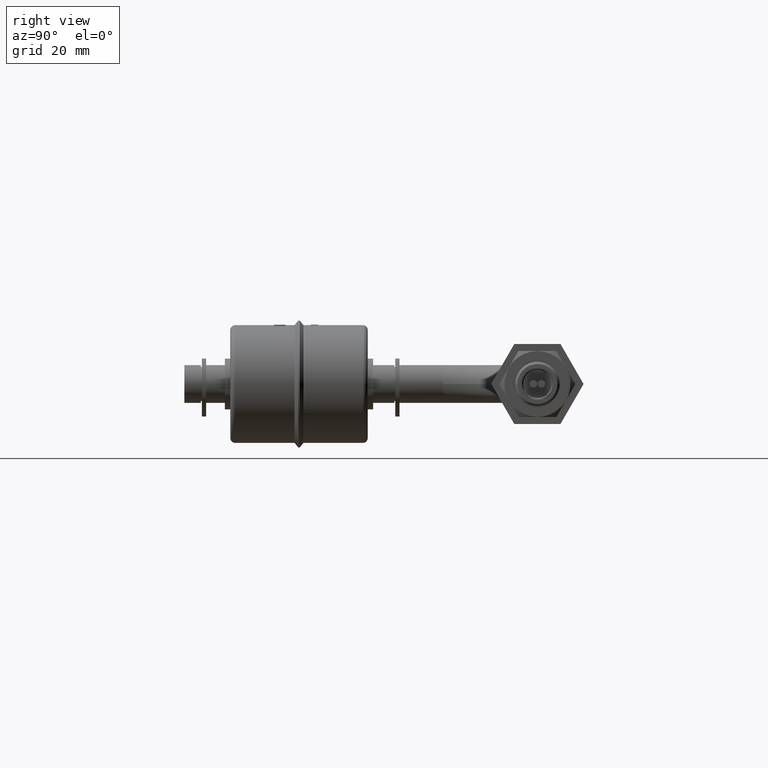
[diagram: clean part render]
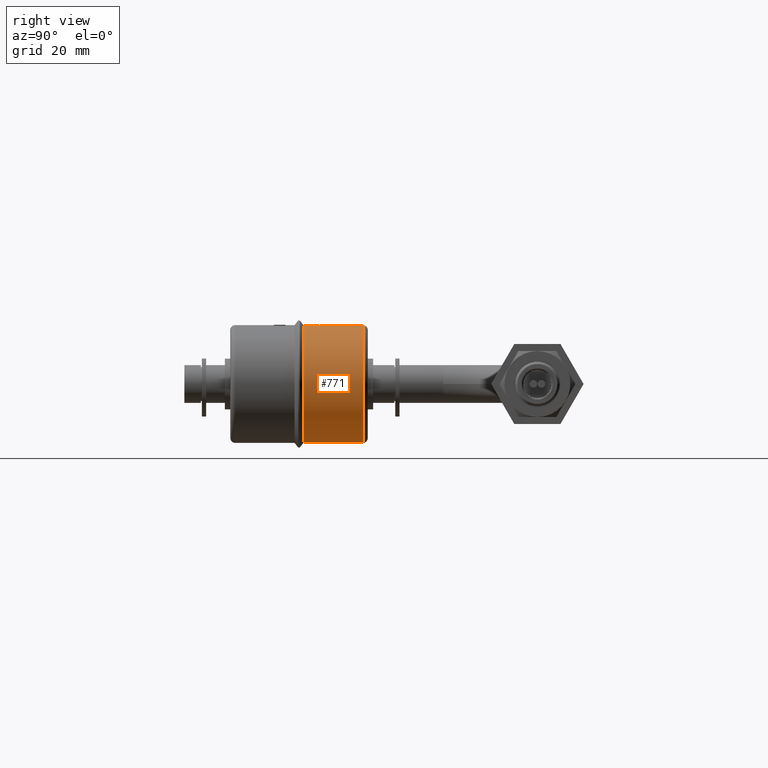
[diagram: same view with one face highlighted and labeled with its STEP entity id]
A machine part, right view. The second image highlights one B-rep face of the part: STEP entity #771.
In plain terms, the highlighted cylindrical surface (partial cylindrical patch) has radius 12.5 mm, axis along (-0, -1, -0).
Its self-contained STEP definition (entity closure, byte-faithful):
#99 = CARTESIAN_POINT ( 'NONE',  ( 0.7433915989660145884, 28.19691010064516945, 12.47795346243864323 ) ) ;
#122 = CARTESIAN_POINT ( 'NONE',  ( 0.8091316928676174358, 26.77177975796869802, 12.47431058760020228 ) ) ;
#150 = VERTEX_POINT ( 'NONE', #4309 ) ;
#162 = CARTESIAN_POINT ( 'NONE',  ( 2.196992852310222677, 26.37401893132059172, 12.30585173349296468 ) ) ;
#176 = DIRECTION ( 'NONE',  ( -0.0000000000000000000, -1.000000000000000000, -0.0000000000000000000 ) ) ;
#195 = CARTESIAN_POINT ( 'NONE',  ( 0.1171375204749793009, 28.78038633361308740, 12.49945624666883859 ) ) ;
#200 = VERTEX_POINT ( 'NONE', #4786 ) ;
#225 = CARTESIAN_POINT ( 'NONE',  ( 0.6279278836946089459, 27.21130240048875137, 12.48422502174397941 ) ) ;
#274 = DIRECTION ( 'NONE',  ( -0.0000000000000000000, -1.000000000000000000, -0.0000000000000000000 ) ) ;
#317 = CARTESIAN_POINT ( 'NONE',  ( 1.714314920617636240, 26.44702855182415391, 12.38209996349304376 ) ) ;
#400 = ORIENTED_EDGE ( 'NONE', *, *, #6238, .T. ) ;
#417 = CARTESIAN_POINT ( 'NONE',  ( 0.0000000000000000000, 37.94999999999999574, 0.0000000000000000000 ) ) ;
#490 = CARTESIAN_POINT ( 'NONE',  ( 0.7614700107552599961, 27.85596884027372511, 12.47679168110111725 ) ) ;
#526 = DIRECTION ( 'NONE',  ( -0.0000000000000000000, -1.000000000000000000, -0.0000000000000000000 ) ) ;
#527 = CARTESIAN_POINT ( 'NONE',  ( 2.404946577101083616, 26.44596864932883662, 12.26646778666497539 ) ) ;
#530 = DIRECTION ( 'NONE',  ( 0.0000000000000000000, 0.0000000000000000000, -1.000000000000000000 ) ) ;
#538 = VERTEX_POINT ( 'NONE', #8331 ) ;
#540 = CARTESIAN_POINT ( 'NONE',  ( 2.465159504026103399, 28.61474050342846098, 12.25450890977316121 ) ) ;
#561 = VERTEX_POINT ( 'NONE', #4224 ) ;
#668 = CARTESIAN_POINT ( 'NONE',  ( 0.1263467554349991251, 28.22884943677128788, 12.49936144358547097 ) ) ;
#670 = CARTESIAN_POINT ( 'NONE',  ( 0.9096575538875141254, 26.86266549515582369, 12.46690581167587553 ) ) ;
#693 = CARTESIAN_POINT ( 'NONE',  ( 0.06168063965292488321, 28.78067944116160959, 12.49984781902131914 ) ) ;
#771 = ADVANCED_FACE ( 'NONE', ( #6615, #5009 ), #1646, .T. ) ;
#890 = B_SPLINE_CURVE_WITH_KNOTS ( 'NONE', 3,
 ( #3624, #1120, #2069, #8468, #9948, #4413, #2713, #5158, #8363, #4522, #7638, #6086, #490, #10155, #3716, #4365 ),
 .UNSPECIFIED., .F., .F.,
 ( 4, 2, 2, 2, 2, 2, 2, 4 ),
 ( 0.0000000000000000000, 0.0002276516652824956441, 0.0004553033305649912882, 0.0006829549958474869864, 0.0009106066611299825763, 0.001365909991694981562, 0.001593561656977481381, 0.001821213322259980982 ),
 .UNSPECIFIED. ) ;
#901 = CARTESIAN_POINT ( 'NONE',  ( 1.476527239314954887, 26.37629366395837849, 12.41272832676052040 ) ) ;
#945 = CARTESIAN_POINT ( 'NONE',  ( 0.0000000000000000000, 25.29828951221004374, -12.50000000000000178 ) ) ;
#973 = VERTEX_POINT ( 'NONE', #9324 ) ;
#1050 = CARTESIAN_POINT ( 'NONE',  ( 0.02431159623656548377, 28.59979161927607905, 12.49997656208424779 ) ) ;
#1109 = CARTESIAN_POINT ( 'NONE',  ( 0.1263467554349991251, 28.22884943677128788, 12.49936144358547097 ) ) ;
#1120 = CARTESIAN_POINT ( 'NONE',  ( 1.787505395480436965, 28.71345278840971105, 12.37177076853418711 ) ) ;
#1161 = CARTESIAN_POINT ( 'NONE',  ( 0.005888894683393432541, 26.37964636528310791, 12.49999861283670377 ) ) ;
#1169 = CARTESIAN_POINT ( 'NONE',  ( 1.965885327346167610, 28.71230090350568176, 12.34487915838186822 ) ) ;
#1305 = CARTESIAN_POINT ( 'NONE',  ( 2.220528122474717314, 26.49137504162328938, 12.30167615683985716 ) ) ;
#1339 = CARTESIAN_POINT ( 'NONE',  ( 1.897273866742778647, 28.81498667855867168, 12.35517510497422933 ) ) ;
#1390 = ORIENTED_EDGE ( 'NONE', *, *, #5008, .T. ) ;
#1400 = ORIENTED_EDGE ( 'NONE', *, *, #5000, .T. ) ;
#1469 = B_SPLINE_CURVE_WITH_KNOTS ( 'NONE', 3,
 ( #2388, #3196, #8669, #7960, #2332, #3780, #693, #9408, #6411, #2171 ),
 .UNSPECIFIED., .F., .F.,
 ( 4, 3, 3, 4 ),
 ( 0.0000000000000000000, 1.643153585383542740E-05, 3.286312851827751592E-05, 6.572641336118978730E-05 ),
 .UNSPECIFIED. ) ;
#1490 = CIRCLE ( 'NONE', #3195, 12.50000000000000178 ) ;
#1547 = VERTEX_POINT ( 'NONE', #6607 ) ;
#1558 = VERTEX_POINT ( 'NONE', #6728 ) ;
#1586 = LINE ( 'NONE', #7199, #4791 ) ;
#1608 = EDGE_CURVE ( 'NONE', #1971, #4918, #1683, .T. ) ;
#1646 = CYLINDRICAL_SURFACE ( 'NONE', #4771, 12.50000000000000000 ) ;
#1670 = ORIENTED_EDGE ( 'NONE', *, *, #9792, .T. ) ;
#1677 = EDGE_CURVE ( 'NONE', #973, #7993, #5899, .T. ) ;
#1683 =( BOUNDED_CURVE ( )  B_SPLINE_CURVE ( 3, ( #5094, #1050, #4296, #4347 ),
 .UNSPECIFIED., .F., .T. ) 
 B_SPLINE_CURVE_WITH_KNOTS ( ( 4, 4 ),
 ( 1.572560477514344024, 1.573102812035284126 ),
 .UNSPECIFIED. ) 
 CURVE ( )  GEOMETRIC_REPRESENTATION_ITEM ( )  RATIONAL_B_SPLINE_CURVE ( ( 1.000000000000000000, 0.9999999754894389747, 0.9999999754894389747, 1.000000000000000000 ) ) 
 REPRESENTATION_ITEM ( '' )  );
#1724 = CARTESIAN_POINT ( 'NONE',  ( 1.070248863757675029, 28.59741852442783383, 12.45470842200331418 ) ) ;
#1732 = EDGE_CURVE ( 'NONE', #6266, #1971, #2680, .T. ) ;
#1792 = EDGE_CURVE ( 'NONE', #10067, #561, #1490, .T. ) ;
#1803 = DIRECTION ( 'NONE',  ( 0.0000000000000000000, 0.0000000000000000000, -1.000000000000000000 ) ) ;
#1820 = CARTESIAN_POINT ( 'NONE',  ( 0.1623284900287088051, 28.78161231603696990, 12.49894593401079490 ) ) ;
#1884 = CARTESIAN_POINT ( 'NONE',  ( 1.889428790291698856, 26.34655047310571163, 12.35681743796982524 ) ) ;
#1911 = CARTESIAN_POINT ( 'NONE',  ( 0.001962983839626683460, 26.37970556745363382, 12.50000000000000000 ) ) ;
#1971 = VERTEX_POINT ( 'NONE', #4121 ) ;
#2025 = CARTESIAN_POINT ( 'NONE',  ( 2.372145977824497542, 28.76885238052527427, 12.27294605415855067 ) ) ;
#2069 = CARTESIAN_POINT ( 'NONE',  ( 1.712047821779614898, 28.70899408905421168, 12.38242691328907163 ) ) ;
#2171 = CARTESIAN_POINT ( 'NONE',  ( 0.09453681615650272319, 28.78004789279376041, 12.49964250650357656 ) ) ;
#2208 = CARTESIAN_POINT ( 'NONE',  ( 0.0000000000000000000, 25.29828951221004374, 0.0000000000000000000 ) ) ;
#2259 = CARTESIAN_POINT ( 'NONE',  ( 0.8129468124662632134, 27.05663221181540123, 12.47355508484551301 ) ) ;
#2292 = VECTOR ( 'NONE', #6781, 1000.000000000000000 ) ;
#2296 = ORIENTED_EDGE ( 'NONE', *, *, #1677, .T. ) ;
#2332 = CARTESIAN_POINT ( 'NONE',  ( 0.05073002161571937146, 28.78096269302822563, 12.49989825716452430 ) ) ;
#2388 = CARTESIAN_POINT ( 'NONE',  ( 0.02883103994190307912, 28.78161231603696990, 12.49996675080121555 ) ) ;
#2472 = CARTESIAN_POINT ( 'NONE',  ( 0.7309487310114570757, 27.47994253941575593, 12.47861032069516618 ) ) ;
#2487 = ORIENTED_EDGE ( 'NONE', *, *, #7425, .T. ) ;
#2501 = CARTESIAN_POINT ( 'NONE',  ( 0.1058370963080327298, 28.78021617590755099, 12.49955704065872197 ) ) ;
#2512 = CARTESIAN_POINT ( 'NONE',  ( 1.554785201014117213, 28.78383295424587374, 12.40322695499893157 ) ) ;
#2522 = CARTESIAN_POINT ( 'NONE',  ( 1.102236267688492477, 26.64618296145196297, 12.45170655787460667 ) ) ;
#2574 = CARTESIAN_POINT ( 'NONE',  ( 1.786199816475241064, 26.34528385195276456, 12.37172139258009018 ) ) ;
#2589 = CARTESIAN_POINT ( 'NONE',  ( 1.707775745244631160, 26.34710567461690900, 12.38304407413703245 ) ) ;
#2625 = CARTESIAN_POINT ( 'NONE',  ( 2.297868100158664717, 26.39269503748335310, 12.28740401418773054 ) ) ;
#2680 =( BOUNDED_CURVE ( )  B_SPLINE_CURVE ( 3, ( #9346, #3768, #5560, #4627 ),
 .UNSPECIFIED., .F., .T. ) 
 B_SPLINE_CURVE_WITH_KNOTS ( ( 4, 4 ),
 ( 1.570796326794896780, 1.572560477514344024 ),
 .UNSPECIFIED. ) 
 CURVE ( )  GEOMETRIC_REPRESENTATION_ITEM ( )  RATIONAL_B_SPLINE_CURVE ( ( 1.000000000000000000, 0.9999997406477032502, 0.9999997406477032502, 1.000000000000000000 ) ) 
 REPRESENTATION_ITEM ( '' )  );
#2706 = EDGE_CURVE ( 'NONE', #6325, #6893, #7525, .T. ) ;
#2713 = CARTESIAN_POINT ( 'NONE',  ( 1.277125340193323799, 28.58222330121400390, 12.43475154285574291 ) ) ;
#2744 = CARTESIAN_POINT ( 'NONE',  ( 2.058700693519853520, 26.46485132710756005, 12.32942605343505349 ) ) ;
#2798 = B_SPLINE_CURVE_WITH_KNOTS ( 'NONE', 3,
 ( #4566, #2812, #7678, #5978, #8352, #9188, #527, #6832, #3706, #6927 ),
 .UNSPECIFIED., .F., .F.,
 ( 4, 3, 3, 4 ),
 ( 0.0000000000000000000, 6.875992109802106793E-05, 0.0001032815097529160553, 0.0001378374179431492749 ),
 .UNSPECIFIED. ) ;
#2812 = CARTESIAN_POINT ( 'NONE',  ( 2.424866107157834794, 26.52372248156121870, 12.26254761941864757 ) ) ;
#2835 = CARTESIAN_POINT ( 'NONE',  ( 2.088570030472275185, 28.80835922324149934, 12.32465692963600645 ) ) ;
#2849 = CARTESIAN_POINT ( 'NONE',  ( 2.431785141504402503, 26.54553002708297527, 12.26117535253282576 ) ) ;
#2864 = CARTESIAN_POINT ( 'NONE',  ( 0.03170129418602216087, 26.37918843108878875, 12.49995980105324023 ) ) ;
#3016 = CARTESIAN_POINT ( 'NONE',  ( 0.1383408621816240025, 28.41310672882089250, 12.49924020407427072 ) ) ;
#3088 = CARTESIAN_POINT ( 'NONE',  ( 0.7296926528976314108, 27.55249712129243278, 12.47868377002587792 ) ) ;
#3116 = EDGE_CURVE ( 'NONE', #10123, #7218, #3353, .T. ) ;
#3173 =( BOUNDED_CURVE ( )  B_SPLINE_CURVE ( 3, ( #1109, #5303, #7780, #8508 ),
 .UNSPECIFIED., .F., .T. ) 
 B_SPLINE_CURVE_WITH_KNOTS ( ( 4, 4 ),
 ( 4.702281067830039518, 4.707162216670343291 ),
 .UNSPECIFIED. ) 
 CURVE ( )  GEOMETRIC_REPRESENTATION_ITEM ( )  RATIONAL_B_SPLINE_CURVE ( ( 1.000000000000000000, 0.9999980145331521797, 0.9999980145331521797, 1.000000000000000000 ) ) 
 REPRESENTATION_ITEM ( '' )  );
#3195 = AXIS2_PLACEMENT_3D ( 'NONE', #2208, #10304, #530 ) ;
#3196 = CARTESIAN_POINT ( 'NONE',  ( 0.03430567083513498539, 28.78144575448639841, 12.49995412362347302 ) ) ;
#3214 = CARTESIAN_POINT ( 'NONE',  ( 0.8858816231597176349, 28.41502818265917440, 12.46872136093440098 ) ) ;
#3324 = CARTESIAN_POINT ( 'NONE',  ( 0.8316169004969129475, 28.34529602792079572, 12.47238417508880737 ) ) ;
#3348 = CARTESIAN_POINT ( 'NONE',  ( 0.7239536256604149900, 26.90974587660557660, 12.47912494817079931 ) ) ;
#3353 = B_SPLINE_CURVE_WITH_KNOTS ( 'NONE', 3,
 ( #540, #7694, #3627, #7843, #1169, #6888 ),
 .UNSPECIFIED., .F., .F.,
 ( 4, 2, 4 ),
 ( 0.0000000000000000000, 0.0003103806818029206734, 0.0006207613636058413467 ),
 .UNSPECIFIED. ) ;
#3398 = EDGE_LOOP ( 'NONE', ( #2487, #10263, #1390, #5697, #9305, #4066, #5587, #4887, #5382, #4871 ) ) ;
#3412 = EDGE_CURVE ( 'NONE', #9013, #10123, #10202, .T. ) ;
#3457 = CARTESIAN_POINT ( 'NONE',  ( 0.6020501372085726999, 27.36780804223504404, 12.48549972780211981 ) ) ;
#3517 = CARTESIAN_POINT ( 'NONE',  ( 0.04890863957894591579, 26.37883896819182183, 12.49990727832154747 ) ) ;
#3624 = CARTESIAN_POINT ( 'NONE',  ( 1.863378029806675551, 28.71486359099356633, 12.36033261356804402 ) ) ;
#3627 = CARTESIAN_POINT ( 'NONE',  ( 2.269663495260342945, 28.67137520297957920, 12.29264372122824867 ) ) ;
#3676 = ORIENTED_EDGE ( 'NONE', *, *, #1608, .T. ) ;
#3706 = CARTESIAN_POINT ( 'NONE',  ( 2.400535509090331310, 26.42335525693332343, 12.26733198200115638 ) ) ;
#3716 = CARTESIAN_POINT ( 'NONE',  ( 0.7314909194656273872, 27.62921011117443371, 12.47857861615493391 ) ) ;
#3768 = CARTESIAN_POINT ( 'NONE',  ( 0.007350628950900208944, 28.19309191430749451, 12.50000000000000000 ) ) ;
#3777 = ORIENTED_EDGE ( 'NONE', *, *, #9536, .T. ) ;
#3780 = CARTESIAN_POINT ( 'NONE',  ( 0.05620513981088959277, 28.78081275401042660, 12.49987483793687382 ) ) ;
#3919 = CARTESIAN_POINT ( 'NONE',  ( 0.7556295624969645575, 27.26565332314667600, 12.47714451167160377 ) ) ;
#3946 = VERTEX_POINT ( 'NONE', #6240 ) ;
#4023 = EDGE_CURVE ( 'NONE', #7993, #561, #1586, .T. ) ;
#4066 = ORIENTED_EDGE ( 'NONE', *, *, #2706, .T. ) ;
#4121 = CARTESIAN_POINT ( 'NONE',  ( 0.02205187255468251534, 28.50888119730494097, 12.49998054858154006 ) ) ;
#4123 = CARTESIAN_POINT ( 'NONE',  ( 0.7080484592103359898, 28.11669596971907481, 12.47996254353210688 ) ) ;
#4146 = CARTESIAN_POINT ( 'NONE',  ( 1.177987827411076882, 26.47077784797255973, 12.44526737113904602 ) ) ;
#4195 = EDGE_CURVE ( 'NONE', #1558, #973, #9281, .T. ) ;
#4224 = CARTESIAN_POINT ( 'NONE',  ( 1.530808498934191916E-15, 25.29828951221004374, 12.50000000000000355 ) ) ;
#4296 = CARTESIAN_POINT ( 'NONE',  ( 0.02657131875436270080, 28.69070199441515001, 12.49997196282402534 ) ) ;
#4309 = CARTESIAN_POINT ( 'NONE',  ( 0.1623284900287088051, 28.78161231603696990, 12.49894593401079490 ) ) ;
#4337 = CARTESIAN_POINT ( 'NONE',  ( 1.430612858048308622, 26.49235966445023749, 12.41805017234260156 ) ) ;
#4347 = CARTESIAN_POINT ( 'NONE',  ( 0.02883103994190307912, 28.78161231603696990, 12.49996675080121555 ) ) ;
#4360 = ORIENTED_EDGE ( 'NONE', *, *, #4195, .T. ) ;
#4365 = CARTESIAN_POINT ( 'NONE',  ( 0.7296926528976314108, 27.55249712129243278, 12.47868377002587792 ) ) ;
#4413 = CARTESIAN_POINT ( 'NONE',  ( 1.345915035408116189, 28.61476974739943557, 12.42754151443205402 ) ) ;
#4420 = CARTESIAN_POINT ( 'NONE',  ( 1.786199816475241064, 26.44540693951786992, 12.37172139258009018 ) ) ;
#4496 = CARTESIAN_POINT ( 'NONE',  ( 1.895735146910658919, 26.44828302641339945, 12.35553411417597047 ) ) ;
#4522 = CARTESIAN_POINT ( 'NONE',  ( 0.9323664244935219170, 28.28438608276261590, 12.46562539731979058 ) ) ;
#4561 = B_SPLINE_CURVE_WITH_KNOTS ( 'NONE', 3,
 ( #9709, #2472, #5707, #3919, #8135, #2259, #5505, #670, #10357, #2522, #9176, #4337, #5043, #6718, #317, #9972 ),
 .UNSPECIFIED., .F., .F.,
 ( 4, 2, 2, 2, 2, 2, 2, 4 ),
 ( 0.0000000000000000000, 0.0002154940332491777103, 0.0004309880664983554207, 0.0006464820997475331310, 0.0008619761329967108414, 0.001292964199495066262, 0.001508458232744242563, 0.001723952265993418647 ),
 .UNSPECIFIED. ) ;
#4566 = CARTESIAN_POINT ( 'NONE',  ( 2.431785141504402503, 26.54553002708297527, 12.26117535253282576 ) ) ;
#4627 = CARTESIAN_POINT ( 'NONE',  ( 0.02205187255468251534, 28.50888119730494097, 12.49998054858154006 ) ) ;
#4633 = CARTESIAN_POINT ( 'NONE',  ( 1.530808498934191521E-15, 7.058028616852142889, 12.50000000000000000 ) ) ;
#4762 = CARTESIAN_POINT ( 'NONE',  ( 0.6031126061442292352, 27.69971884861751121, 12.48544966202146256 ) ) ;
#4771 = AXIS2_PLACEMENT_3D ( 'NONE', #8101, #176, #1803 ) ;
#4786 = CARTESIAN_POINT ( 'NONE',  ( 1.530808498934191521E-15, 37.94999999999999574, 12.50000000000000000 ) ) ;
#4791 = VECTOR ( 'NONE', #7364, 1000.000000000000000 ) ;
#4871 = ORIENTED_EDGE ( 'NONE', *, *, #6713, .T. ) ;
#4887 = ORIENTED_EDGE ( 'NONE', *, *, #3412, .T. ) ;
#4913 = CARTESIAN_POINT ( 'NONE',  ( 0.1566801094458841470, 28.78143892915731428, 12.49901929164398773 ) ) ;
#4918 = VERTEX_POINT ( 'NONE', #8977 ) ;
#4946 = CARTESIAN_POINT ( 'NONE',  ( 1.629696900413418970, 26.35125087463389448, 12.39354853200587847 ) ) ;
#5000 = EDGE_CURVE ( 'NONE', #9311, #1558, #3173, .T. ) ;
#5008 = EDGE_CURVE ( 'NONE', #1547, #7541, #2798, .T. ) ;
#5009 = FACE_OUTER_BOUND ( 'NONE', #6425, .T. ) ;
#5043 = CARTESIAN_POINT ( 'NONE',  ( 1.501205124819180670, 26.47417859846689936, 12.40973255290767518 ) ) ;
#5052 = CARTESIAN_POINT ( 'NONE',  ( 0.05751213273399004289, 26.37865821447446990, 12.49986769348333659 ) ) ;
#5094 = CARTESIAN_POINT ( 'NONE',  ( 0.02205187255468251534, 28.50888119730494097, 12.49998054858154006 ) ) ;
#5158 = CARTESIAN_POINT ( 'NONE',  ( 1.149744380986192249, 28.49942511347839513, 12.44717570075669144 ) ) ;
#5198 = DIRECTION ( 'NONE',  ( 0.0000000000000000000, 0.0000000000000000000, -1.000000000000000000 ) ) ;
#5256 = CARTESIAN_POINT ( 'NONE',  ( 0.01449336943301782026, 26.37951380132712487, 12.49999455916860391 ) ) ;
#5273 = CARTESIAN_POINT ( 'NONE',  ( 2.418641842475723891, 28.75836267835378024, 12.26386656386768692 ) ) ;
#5293 = CARTESIAN_POINT ( 'NONE',  ( 2.465159504026103399, 28.61474050342846098, 12.25450890977316121 ) ) ;
#5303 = CARTESIAN_POINT ( 'NONE',  ( 0.1060096540407008958, 27.72772239985025067, 12.49956701622914323 ) ) ;
#5307 = CARTESIAN_POINT ( 'NONE',  ( 0.04030509537042208101, 26.37901972307830434, 12.49993798085247221 ) ) ;
#5382 = ORIENTED_EDGE ( 'NONE', *, *, #3116, .T. ) ;
#5414 = B_SPLINE_CURVE_WITH_KNOTS ( 'NONE', 3,
 ( #8132, #2625, #162, #9008, #1884, #2574 ),
 .UNSPECIFIED., .F., .F.,
 ( 4, 2, 4 ),
 ( 0.0000000000000000000, 0.0003126153401416298426, 0.0006252306802832596853 ),
 .UNSPECIFIED. ) ;
#5450 = CARTESIAN_POINT ( 'NONE',  ( 1.530808498934191521E-15, 28.03519711924489499, 12.50000000000000000 ) ) ;
#5505 = CARTESIAN_POINT ( 'NONE',  ( 0.8400466528922032605, 26.98884472442534488, 12.47178972736099212 ) ) ;
#5560 = CARTESIAN_POINT ( 'NONE',  ( 0.01470125504219466084, 28.35098664794451651, 12.49999351619216625 ) ) ;
#5587 = ORIENTED_EDGE ( 'NONE', *, *, #8686, .T. ) ;
#5594 = CARTESIAN_POINT ( 'NONE',  ( 0.1623284900287088051, 28.78161231603696990, 12.49894593401079490 ) ) ;
#5665 =( BOUNDED_CURVE ( )  B_SPLINE_CURVE ( 3, ( #5594, #8801, #3016, #668 ),
 .UNSPECIFIED., .F., .T. ) 
 B_SPLINE_CURVE_WITH_KNOTS ( ( 4, 4 ),
 ( 4.699402336146206949, 4.702281067830039518 ),
 .UNSPECIFIED. ) 
 CURVE ( )  GEOMETRIC_REPRESENTATION_ITEM ( )  RATIONAL_B_SPLINE_CURVE ( ( 1.000000000000000000, 0.9999993094087769041, 0.9999993094087769041, 1.000000000000000000 ) ) 
 REPRESENTATION_ITEM ( '' )  );
#5674 = ORIENTED_EDGE ( 'NONE', *, *, #1792, .F. ) ;
#5697 = ORIENTED_EDGE ( 'NONE', *, *, #9140, .T. ) ;
#5707 = CARTESIAN_POINT ( 'NONE',  ( 0.7345767010569604905, 27.40777063435817951, 12.47840167133277056 ) ) ;
#5734 = CARTESIAN_POINT ( 'NONE',  ( 0.1340851899053251139, 28.78078564732115652, 12.49928210268802431 ) ) ;
#5744 = CARTESIAN_POINT ( 'NONE',  ( 1.811259156283195004, 28.81308009297819339, 12.36838361565285993 ) ) ;
#5770 = CARTESIAN_POINT ( 'NONE',  ( 1.400896597197214266, 26.39432951338719846, 12.42147626247090564 ) ) ;
#5851 = CARTESIAN_POINT ( 'NONE',  ( 0.1397342283918401040, 28.78093890002710253, 12.49922022596572901 ) ) ;
#5879 = CARTESIAN_POINT ( 'NONE',  ( 0.06533424895001403720, 26.72543870005151945, 12.49982925627042540 ) ) ;
#5888 = ORIENTED_EDGE ( 'NONE', *, *, #10181, .T. ) ;
#5899 = B_SPLINE_CURVE_WITH_KNOTS ( 'NONE', 3,
 ( #7682, #3517, #5307, #2864, #9287, #5256, #1161, #9139, #1911, #8510 ),
 .UNSPECIFIED., .F., .F.,
 ( 4, 3, 3, 4 ),
 ( 0.0000000000000000000, 2.581644824548485971E-05, 5.163297242569619624E-05, 5.752251392701171495E-05 ),
 .UNSPECIFIED. ) ;
#5978 = CARTESIAN_POINT ( 'NONE',  ( 2.412441433289079562, 26.47965779829226207, 12.26499597761655203 ) ) ;
#6073 = EDGE_CURVE ( 'NONE', #7869, #1547, #7350, .T. ) ;
#6086 = CARTESIAN_POINT ( 'NONE',  ( 0.7805386353569876423, 27.93085734434634659, 12.47563157599332051 ) ) ;
#6238 = EDGE_CURVE ( 'NONE', #150, #9311, #5665, .T. ) ;
#6240 = CARTESIAN_POINT ( 'NONE',  ( 1.786199816475241064, 26.34528385195276456, 12.37172139258009018 ) ) ;
#6266 = VERTEX_POINT ( 'NONE', #5450 ) ;
#6325 = VERTEX_POINT ( 'NONE', #9811 ) ;
#6411 = CARTESIAN_POINT ( 'NONE',  ( 0.08358433086001264278, 28.78022899378495936, 12.49972534191974027 ) ) ;
#6425 = EDGE_LOOP ( 'NONE', ( #5888, #9577, #7273, #3676, #1670, #3777, #400, #1400, #4360, #2296, #9909, #5674, #8842 ) ) ;
#6431 = CARTESIAN_POINT ( 'NONE',  ( 1.225307031690452853, 28.68467645075310202, 12.44088390014375278 ) ) ;
#6483 = CARTESIAN_POINT ( 'NONE',  ( 0.5961952028108259416, 27.52642340057235515, 12.48577395599269124 ) ) ;
#6531 = CARTESIAN_POINT ( 'NONE',  ( 0.1510316719151749976, 28.78126554036414575, 12.49908882067216531 ) ) ;
#6607 = CARTESIAN_POINT ( 'NONE',  ( 2.431785141504402503, 26.54553002708297527, 12.26117535253282576 ) ) ;
#6609 = CARTESIAN_POINT ( 'NONE',  ( 0.06272688092940545412, 26.60984538447120684, 12.49984288449109293 ) ) ;
#6615 = FACE_BOUND ( 'NONE', #3398, .T. ) ;
#6668 = CARTESIAN_POINT ( 'NONE',  ( 0.5961952028108259416, 27.52642340057235515, 12.48577395599269124 ) ) ;
#6713 = EDGE_CURVE ( 'NONE', #7218, #9782, #890, .T. ) ;
#6718 = CARTESIAN_POINT ( 'NONE',  ( 1.642605916994194004, 26.45060374510488188, 12.39180877285214954 ) ) ;
#6728 = CARTESIAN_POINT ( 'NONE',  ( 0.06533424895001403720, 26.72543870005151945, 12.49982925627042540 ) ) ;
#6767 = CARTESIAN_POINT ( 'NONE',  ( 1.786199816475241064, 26.44540693951786992, 12.37172139258009018 ) ) ;
#6781 = DIRECTION ( 'NONE',  ( -0.0000000000000000000, -1.000000000000000000, -0.0000000000000000000 ) ) ;
#6786 = EDGE_CURVE ( 'NONE', #200, #6266, #7096, .T. ) ;
#6831 = CARTESIAN_POINT ( 'NONE',  ( 2.465159504026534609, 7.058028616852192627, 12.25450890977307594 ) ) ;
#6832 = CARTESIAN_POINT ( 'NONE',  ( 2.402660316265733620, 26.43467873328457074, 12.26691602777773582 ) ) ;
#6883 = LINE ( 'NONE', #9247, #2292 ) ;
#6888 = CARTESIAN_POINT ( 'NONE',  ( 1.863378029806675551, 28.71486359099356633, 12.36033261356804402 ) ) ;
#6893 = VERTEX_POINT ( 'NONE', #7467 ) ;
#6921 = CARTESIAN_POINT ( 'NONE',  ( 2.004567545101730186, 26.45748906269114897, 12.33834445745957353 ) ) ;
#6927 = CARTESIAN_POINT ( 'NONE',  ( 2.398410778982700720, 26.41203257699617168, 12.26774737819701144 ) ) ;
#7007 = CARTESIAN_POINT ( 'NONE',  ( 0.1263467554349991251, 28.22884943677128788, 12.49936144358547097 ) ) ;
#7096 = LINE ( 'NONE', #4633, #8354 ) ;
#7107 = CARTESIAN_POINT ( 'NONE',  ( 1.605339193283712718E-15, 26.37973320239123254, 12.49999999999999645 ) ) ;
#7127 = CARTESIAN_POINT ( 'NONE',  ( 0.6516445971713082930, 27.95258346317991993, 12.48303476833786085 ) ) ;
#7199 = CARTESIAN_POINT ( 'NONE',  ( 1.530808498934191521E-15, 7.058028616852142889, 12.50000000000000000 ) ) ;
#7218 = VERTEX_POINT ( 'NONE', #8161 ) ;
#7273 = ORIENTED_EDGE ( 'NONE', *, *, #1732, .T. ) ;
#7350 = B_SPLINE_CURVE_WITH_KNOTS ( 'NONE', 3,
 ( #6767, #8400, #4496, #6921, #2744, #1305, #7615, #2849 ),
 .UNSPECIFIED., .F., .F.,
 ( 4, 2, 2, 4 ),
 ( 0.0000000000000000000, 0.0001658480513343795523, 0.0003316961026687591046, 0.0006633922053375160407 ),
 .UNSPECIFIED. ) ;
#7364 = DIRECTION ( 'NONE',  ( -0.0000000000000000000, -1.000000000000000000, -0.0000000000000000000 ) ) ;
#7365 = CARTESIAN_POINT ( 'NONE',  ( 1.037579930303959674, 26.55195755632637500, 12.45738923773948770 ) ) ;
#7425 = EDGE_CURVE ( 'NONE', #9782, #7869, #4561, .T. ) ;
#7435 = CARTESIAN_POINT ( 'NONE',  ( 0.09453681615650272319, 28.78004789279376041, 12.49964250650357656 ) ) ;
#7465 = CARTESIAN_POINT ( 'NONE',  ( 1.786199816475241064, 26.34528385195276456, 12.37172139258009018 ) ) ;
#7467 = CARTESIAN_POINT ( 'NONE',  ( 1.897273866742778647, 28.81498667855867168, 12.35517510497422933 ) ) ;
#7525 = B_SPLINE_CURVE_WITH_KNOTS ( 'NONE', 3,
 ( #6483, #8900, #4762, #8122, #7127, #4123, #99, #3324, #3214, #1724, #6431, #10403, #2512, #9646, #5744, #8950 ),
 .UNSPECIFIED., .F., .F.,
 ( 4, 2, 2, 2, 2, 2, 2, 4 ),
 ( 0.0000000000000000000, 0.0002574854505632556017, 0.0005149709011265112034, 0.0007724563516897668593, 0.001029941802253022407, 0.001544912703379533068, 0.001802398153942788833, 0.002059883604506044380 ),
 .UNSPECIFIED. ) ;
#7541 = VERTEX_POINT ( 'NONE', #7763 ) ;
#7566 = AXIS2_PLACEMENT_3D ( 'NONE', #417, #274, #5198 ) ;
#7615 = CARTESIAN_POINT ( 'NONE',  ( 2.326533707499121473, 26.51763378836034946, 12.28205009463356667 ) ) ;
#7638 = CARTESIAN_POINT ( 'NONE',  ( 0.8553097574477548370, 28.14776605781016983, 12.47080351635934825 ) ) ;
#7657 = CARTESIAN_POINT ( 'NONE',  ( 2.465159504026103399, 28.74823795351526456, 12.25450890977307594 ) ) ;
#7678 = CARTESIAN_POINT ( 'NONE',  ( 2.417946011901839221, 26.50188059156216980, 12.26391326437780016 ) ) ;
#7682 = CARTESIAN_POINT ( 'NONE',  ( 0.05751213273399004289, 26.37865821447446990, 12.49986769348333659 ) ) ;
#7694 = CARTESIAN_POINT ( 'NONE',  ( 2.367817550645998637, 28.64425391167757340, 12.27409055464218035 ) ) ;
#7752 = CARTESIAN_POINT ( 'NONE',  ( 1.993151811627202896, 28.81402375946950301, 12.34045198549751987 ) ) ;
#7763 = CARTESIAN_POINT ( 'NONE',  ( 2.398410778982700720, 26.41203257699617168, 12.26774737819701144 ) ) ;
#7780 = CARTESIAN_POINT ( 'NONE',  ( 0.08567211149952294602, 27.22658449261762925, 12.49972295410040601 ) ) ;
#7843 = CARTESIAN_POINT ( 'NONE',  ( 2.068198308965447207, 28.70591380305954488, 12.32813926728450049 ) ) ;
#7869 = VERTEX_POINT ( 'NONE', #4420 ) ;
#7909 = VERTEX_POINT ( 'NONE', #10066 ) ;
#7944 = B_SPLINE_CURVE_WITH_KNOTS ( 'NONE', 3,
 ( #7465, #2589, #4946, #901, #5770, #4146, #7365, #122, #3348, #9773, #225, #3457, #8972, #6668 ),
 .UNSPECIFIED., .F., .F.,
 ( 4, 2, 2, 2, 2, 2, 4 ),
 ( 0.0000000000000000000, 0.0002344881484964572726, 0.0004689762969929145453, 0.0009379525939858252958, 0.001406928890978735884, 0.001641417039475191395, 0.001875905187971646472 ),
 .UNSPECIFIED. ) ;
#7960 = CARTESIAN_POINT ( 'NONE',  ( 0.04525515496300249602, 28.78112094316079705, 12.49991807856953052 ) ) ;
#7993 = VERTEX_POINT ( 'NONE', #7107 ) ;
#8101 = CARTESIAN_POINT ( 'NONE',  ( 0.0000000000000000000, 7.058028616852142889, 0.0000000000000000000 ) ) ;
#8122 = CARTESIAN_POINT ( 'NONE',  ( 0.6312263534018368594, 27.86908207488503564, 12.48405989129069127 ) ) ;
#8132 = CARTESIAN_POINT ( 'NONE',  ( 2.398410778982700720, 26.41203257699617168, 12.26774737819701144 ) ) ;
#8135 = CARTESIAN_POINT ( 'NONE',  ( 0.7701854259625714461, 27.19524494544908677, 12.47626840782969637 ) ) ;
#8161 = CARTESIAN_POINT ( 'NONE',  ( 1.863378029806675551, 28.71486359099356633, 12.36033261356804402 ) ) ;
#8268 = EDGE_CURVE ( 'NONE', #3946, #6325, #7944, .T. ) ;
#8331 = CARTESIAN_POINT ( 'NONE',  ( 0.09453681615650272319, 28.78004789279376041, 12.49964250650357656 ) ) ;
#8352 = CARTESIAN_POINT ( 'NONE',  ( 2.409676000310378541, 26.46849333871946186, 12.26553991950703448 ) ) ;
#8354 = VECTOR ( 'NONE', #10312, 1000.000000000000000 ) ;
#8363 = CARTESIAN_POINT ( 'NONE',  ( 1.090023980702463868, 28.44951176691119343, 12.45249487634708530 ) ) ;
#8400 = CARTESIAN_POINT ( 'NONE',  ( 1.840997942642046858, 26.44682477054552550, 12.36380976898330708 ) ) ;
#8468 = CARTESIAN_POINT ( 'NONE',  ( 1.563618747946347032, 28.68414291183039211, 12.40204420319797052 ) ) ;
#8508 = CARTESIAN_POINT ( 'NONE',  ( 0.06533424895001403720, 26.72543870005151945, 12.49982925627042540 ) ) ;
#8510 = CARTESIAN_POINT ( 'NONE',  ( 1.605339193283712718E-15, 26.37973320239123254, 12.49999999999999645 ) ) ;
#8627 = CARTESIAN_POINT ( 'NONE',  ( 2.278285510469236108, 28.78602923158034699, 12.29071586691274476 ) ) ;
#8669 = CARTESIAN_POINT ( 'NONE',  ( 0.03978029882625935126, 28.78127919298940185, 12.49993789993646232 ) ) ;
#8686 = EDGE_CURVE ( 'NONE', #6893, #9013, #10306, .T. ) ;
#8801 = CARTESIAN_POINT ( 'NONE',  ( 0.1503347819957576992, 28.59736114915395433, 12.49910170078706351 ) ) ;
#8842 = ORIENTED_EDGE ( 'NONE', *, *, #9928, .F. ) ;
#8900 = CARTESIAN_POINT ( 'NONE',  ( 0.5982885985085606428, 27.61332434624635823, 12.48567399643255982 ) ) ;
#8950 = CARTESIAN_POINT ( 'NONE',  ( 1.897273866742778647, 28.81498667855867168, 12.35517510497422933 ) ) ;
#8972 = CARTESIAN_POINT ( 'NONE',  ( 0.5978316321206658124, 27.44697971889395660, 12.48569581655914895 ) ) ;
#8977 = CARTESIAN_POINT ( 'NONE',  ( 0.02883103994190307912, 28.78161231603696990, 12.49996675080121555 ) ) ;
#9008 = CARTESIAN_POINT ( 'NONE',  ( 1.992423133697020177, 26.35178674848468816, 12.34062456021262122 ) ) ;
#9013 = VERTEX_POINT ( 'NONE', #9877 ) ;
#9052 = CARTESIAN_POINT ( 'NONE',  ( 0.1453828971220287591, 28.78110221866233687, 12.49915452393577908 ) ) ;
#9139 = CARTESIAN_POINT ( 'NONE',  ( 0.003925949494171186369, 26.37967660719644414, 12.49999953760300464 ) ) ;
#9140 = EDGE_CURVE ( 'NONE', #7541, #3946, #5414, .T. ) ;
#9176 = CARTESIAN_POINT ( 'NONE',  ( 1.227846110325231610, 26.56713994780046306, 12.44029287674065465 ) ) ;
#9188 = CARTESIAN_POINT ( 'NONE',  ( 2.407230243256599511, 26.45724575243547250, 12.26602005426152608 ) ) ;
#9247 = CARTESIAN_POINT ( 'NONE',  ( 0.0000000000000000000, 7.058028616852142889, -12.50000000000000000 ) ) ;
#9262 = CARTESIAN_POINT ( 'NONE',  ( 2.230948744861081412, 28.79202045977778113, 12.29939799336361439 ) ) ;
#9281 =( BOUNDED_CURVE ( )  B_SPLINE_CURVE ( 3, ( #5879, #6609, #9831, #5052 ),
 .UNSPECIFIED., .F., .F. ) 
 B_SPLINE_CURVE_WITH_KNOTS ( ( 4, 4 ),
 ( 4.707162216670343291, 4.707787993532877913 ),
 .UNSPECIFIED. ) 
 CURVE ( )  GEOMETRIC_REPRESENTATION_ITEM ( )  RATIONAL_B_SPLINE_CURVE ( ( 1.000000000000000000, 0.9999999673669434097, 0.9999999673669434097, 1.000000000000000000 ) ) 
 REPRESENTATION_ITEM ( '' )  );
#9287 = CARTESIAN_POINT ( 'NONE',  ( 0.02309747894259452095, 26.37935713937494953, 12.49998162128966506 ) ) ;
#9305 = ORIENTED_EDGE ( 'NONE', *, *, #8268, .T. ) ;
#9311 = VERTEX_POINT ( 'NONE', #7007 ) ;
#9324 = CARTESIAN_POINT ( 'NONE',  ( 0.05751213273399004289, 26.37865821447446990, 12.49986769348333659 ) ) ;
#9346 = CARTESIAN_POINT ( 'NONE',  ( 1.530808498934191521E-15, 28.03519711924489499, 12.50000000000000000 ) ) ;
#9408 = CARTESIAN_POINT ( 'NONE',  ( 0.07263155674746533952, 28.78041281747479729, 12.49979378159774690 ) ) ;
#9456 = VECTOR ( 'NONE', #526, 1000.000000000000000 ) ;
#9536 = EDGE_CURVE ( 'NONE', #538, #150, #9919, .T. ) ;
#9577 = ORIENTED_EDGE ( 'NONE', *, *, #6786, .T. ) ;
#9646 = CARTESIAN_POINT ( 'NONE',  ( 1.725297404596582540, 28.80924784027575214, 12.38066011100365316 ) ) ;
#9709 = CARTESIAN_POINT ( 'NONE',  ( 0.7296926528976314108, 27.55249712129243278, 12.47868377002587792 ) ) ;
#9773 = CARTESIAN_POINT ( 'NONE',  ( 0.6465820642027866327, 27.13363028168728874, 12.48329278336820103 ) ) ;
#9782 = VERTEX_POINT ( 'NONE', #3088 ) ;
#9792 = EDGE_CURVE ( 'NONE', #4918, #538, #1469, .T. ) ;
#9811 = CARTESIAN_POINT ( 'NONE',  ( 0.5961952028108259416, 27.52642340057235515, 12.48577395599269124 ) ) ;
#9831 = CARTESIAN_POINT ( 'NONE',  ( 0.06011950877231021090, 26.49425188550665666, 12.49985569689581588 ) ) ;
#9852 = CARTESIAN_POINT ( 'NONE',  ( 0.1284356448477486923, 28.78065253516699684, 12.49934015398942400 ) ) ;
#9877 = CARTESIAN_POINT ( 'NONE',  ( 2.465159504026103399, 28.74823795351526456, 12.25450890977307594 ) ) ;
#9909 = ORIENTED_EDGE ( 'NONE', *, *, #4023, .T. ) ;
#9919 = B_SPLINE_CURVE_WITH_KNOTS ( 'NONE', 3,
 ( #7435, #2501, #195, #9852, #5734, #5851, #9052, #6531, #4913, #1820 ),
 .UNSPECIFIED., .F., .F.,
 ( 4, 3, 3, 4 ),
 ( 8.131516293641283255E-20, 3.390556880632977023E-05, 5.085958787463540083E-05, 6.781388937645304075E-05 ),
 .UNSPECIFIED. ) ;
#9928 = EDGE_CURVE ( 'NONE', #7909, #10067, #6883, .T. ) ;
#9948 = CARTESIAN_POINT ( 'NONE',  ( 1.490240793816566933, 28.66618413687407596, 12.41106191072764986 ) ) ;
#9972 = CARTESIAN_POINT ( 'NONE',  ( 1.786199816475241064, 26.44540693951786992, 12.37172139258009018 ) ) ;
#10066 = CARTESIAN_POINT ( 'NONE',  ( 0.0000000000000000000, 37.94999999999999574, -12.50000000000000000 ) ) ;
#10067 = VERTEX_POINT ( 'NONE', #945 ) ;
#10123 = VERTEX_POINT ( 'NONE', #5293 ) ;
#10155 = CARTESIAN_POINT ( 'NONE',  ( 0.7356528730583702380, 27.70559817439963624, 12.47834051792282573 ) ) ;
#10181 = EDGE_CURVE ( 'NONE', #7909, #200, #10245, .T. ) ;
#10202 = LINE ( 'NONE', #6831, #9456 ) ;
#10245 = CIRCLE ( 'NONE', #7566, 12.50000000000000000 ) ;
#10263 = ORIENTED_EDGE ( 'NONE', *, *, #6073, .T. ) ;
#10304 = DIRECTION ( 'NONE',  ( -0.0000000000000000000, -1.000000000000000000, -0.0000000000000000000 ) ) ;
#10306 = B_SPLINE_CURVE_WITH_KNOTS ( 'NONE', 3,
 ( #1339, #7752, #2835, #9262, #8627, #2025, #5273, #7657 ),
 .UNSPECIFIED., .F., .F.,
 ( 4, 2, 2, 4 ),
 ( 0.0000000000000000000, 0.0002906353251532723335, 0.0004359529877299095032, 0.0005812706503065467271 ),
 .UNSPECIFIED. ) ;
#10312 = DIRECTION ( 'NONE',  ( -0.0000000000000000000, -1.000000000000000000, -0.0000000000000000000 ) ) ;
#10357 = CARTESIAN_POINT ( 'NONE',  ( 0.9533116981905382925, 26.80316034304556894, 12.46369435819089944 ) ) ;
#10403 = CARTESIAN_POINT ( 'NONE',  ( 1.470118616228039077, 28.76443713099067523, 12.41352059807817554 ) ) ;